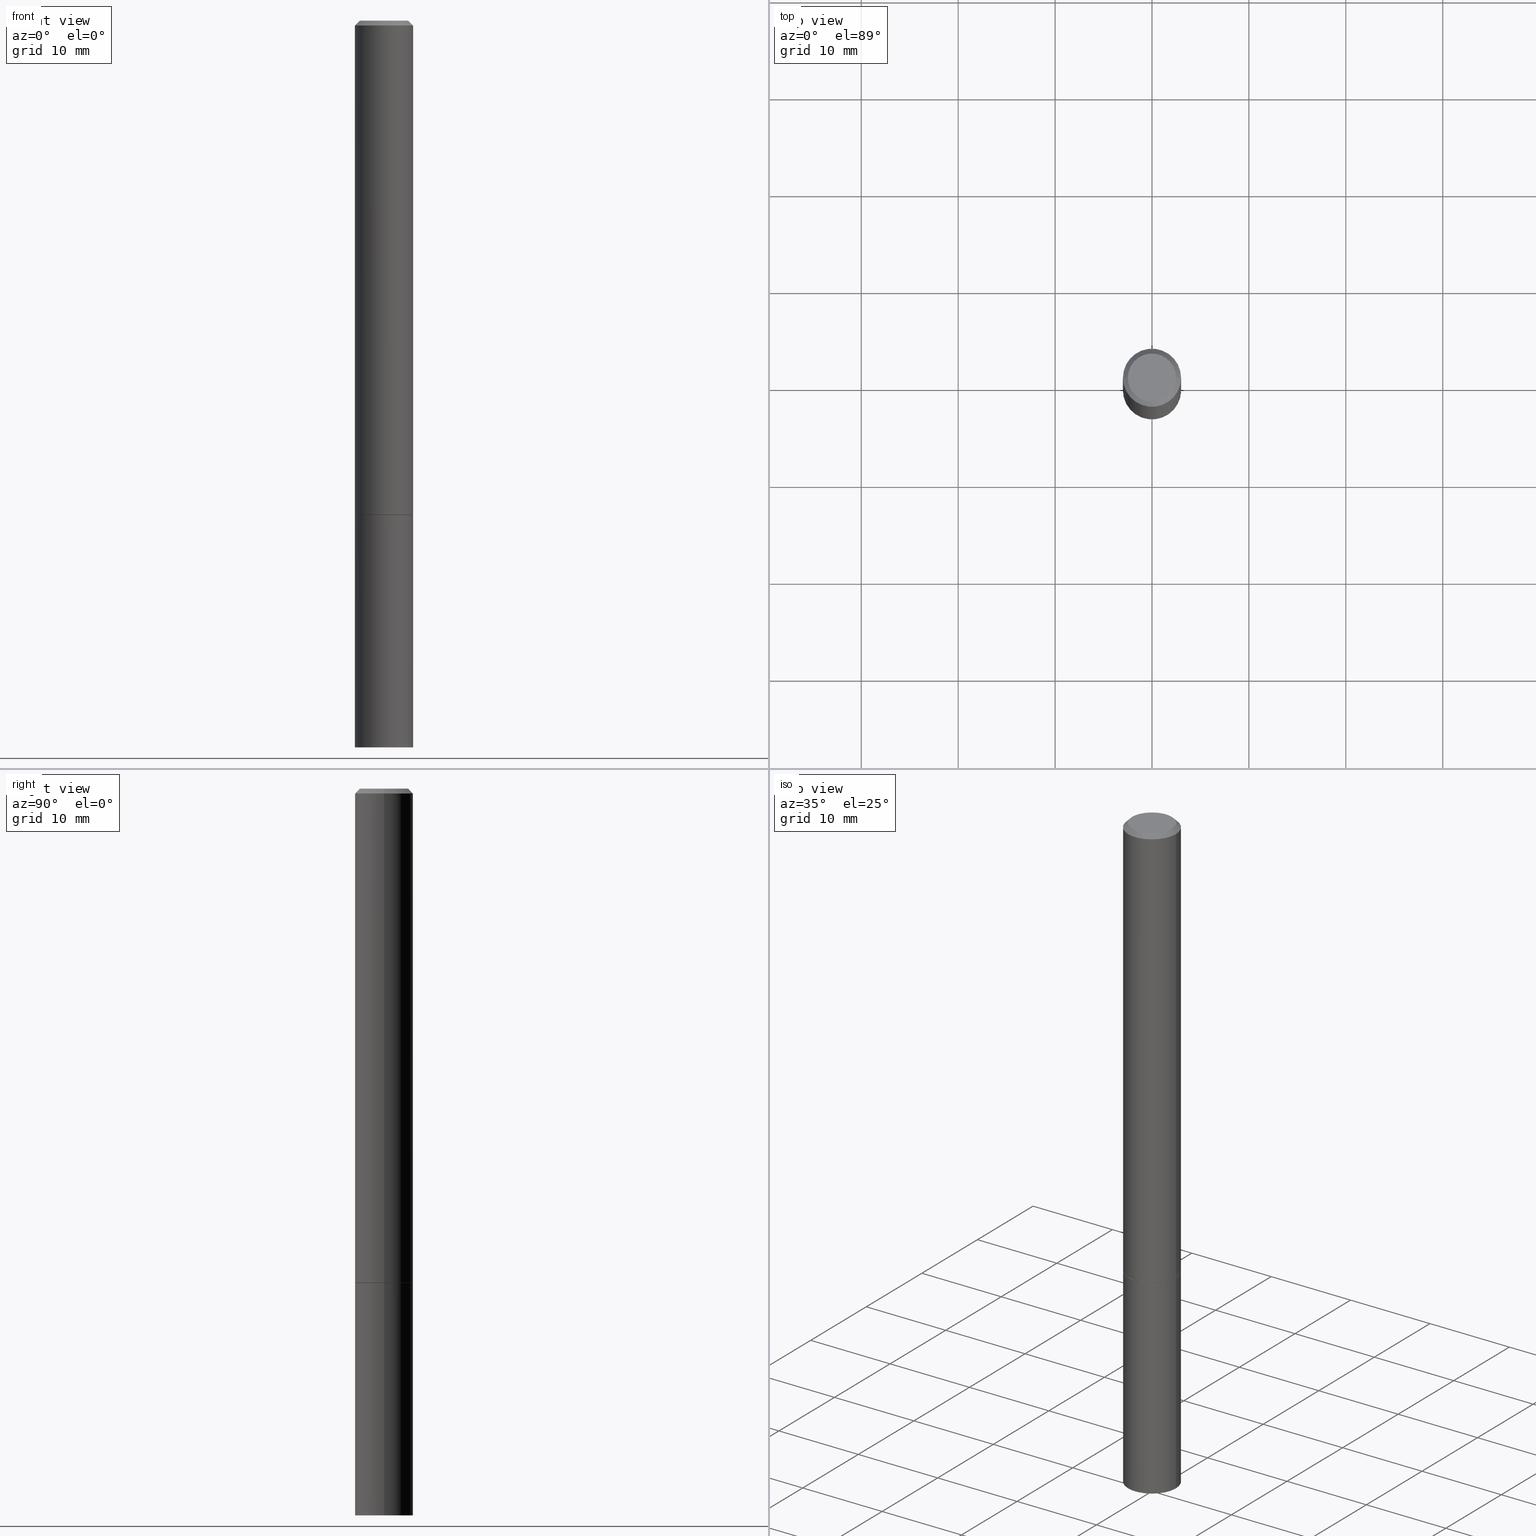
[diagram: canonical four-view strip — front | top / right | iso, engineering-drawing reading convention]
A machine part, canonical four-view strip (front | top / right | iso — engineering-drawing reading convention). The complete STEP part file that produces these views, byte-faithful:
ISO-10303-21;
HEADER;
FILE_DESCRIPTION (( 'STEP AP203' ),
    '1' );
FILE_NAME ('74334.STEP',
    '2024-02-29T08:46:15',
    ( '' ),
    ( '' ),
    'SwSTEP 2.0',
    'SolidWorks 2023',
    '' );
FILE_SCHEMA (( 'CONFIG_CONTROL_DESIGN' ));
ENDSEC;

DATA;
#1 = LINE ( 'NONE', #258, #297 ) ;
#2 = DIRECTION ( 'NONE',  ( -2.445468806185136597E-29, 3.491481338843145583E-15, 1.000000000000000000 ) ) ;
#3 = CARTESIAN_POINT ( 'NONE',  ( -0.1180999999999998995, 8.391509709326776054E-16, -5.809262341591038879E-30 ) ) ;
#4 = LOCAL_TIME ( 3, 46, 15.00000000000000000, #127 ) ;
#5 = LINE ( 'NONE', #81, #95 ) ;
#6 = ORIENTED_EDGE ( 'NONE', *, *, #328, .T. ) ;
#7 = VERTEX_POINT ( 'NONE', #182 ) ;
#8 = AXIS2_PLACEMENT_3D ( 'NONE', #165, #255, #135 ) ;
#9 = COORDINATED_UNIVERSAL_TIME_OFFSET ( 5, 0, .BEHIND. ) ;
#10 = ORIENTED_EDGE ( 'NONE', *, *, #249, .F. ) ;
#11 =( LENGTH_UNIT ( ) NAMED_UNIT ( * ) SI_UNIT ( $, .METRE. ) );
#12 = ORIENTED_EDGE ( 'NONE', *, *, #328, .F. ) ;
#13 = DIRECTION ( 'NONE',  ( 1.000000000000000000, -6.982962677686266711E-15, 0.000000000000000000 ) ) ;
#14 = EDGE_CURVE ( 'NONE', #205, #207, #17, .T. ) ;
#15 = CYLINDRICAL_SURFACE ( 'NONE', #46, 0.1180999999999999966 ) ;
#16 = DIRECTION ( 'NONE',  ( 1.000000000000000000, -6.982962677686267499E-15, 4.876195163481342132E-29 ) ) ;
#17 = LINE ( 'NONE', #131, #346 ) ;
#18 = DIRECTION ( 'NONE',  ( 2.438088387897960049E-29, -3.491481338843145188E-15, -1.000000000000000000 ) ) ;
#19 = CARTESIAN_POINT ( 'NONE',  ( 4.910256815939135309E-29, -7.010545380263150922E-15, -2.007899999999999796 ) ) ;
#20 = DATE_AND_TIME ( #365, #366 ) ;
#21 = AXIS2_PLACEMENT_3D ( 'NONE', #299, #164, #274 ) ;
#22 = CARTESIAN_POINT ( 'NONE',  ( 4.890937612370280165E-31, -6.982962677686301470E-17, -0.02000000000000003164 ) ) ;
#23 = CONICAL_SURFACE ( 'NONE', #279, 0.1180999999999997746, 0.7853981633974471688 ) ;
#24 = FACE_OUTER_BOUND ( 'NONE', #292, .T. ) ;
#25 = EDGE_CURVE ( 'NONE', #268, #207, #74, .T. ) ;
#26 = DATE_TIME_ROLE ( 'classification_date' ) ;
#27 = DIRECTION ( 'NONE',  ( -1.000000000000000000, 6.982962677686265922E-15, -4.876176775795935793E-29 ) ) ;
#28 = ORIENTED_EDGE ( 'NONE', *, *, #249, .T. ) ;
#29 = EDGE_LOOP ( 'NONE', ( #187, #214 ) ) ;
#30 =( NAMED_UNIT ( * ) SI_UNIT ( $, .STERADIAN. ) SOLID_ANGLE_UNIT ( ) );
#31 = EDGE_CURVE ( 'NONE', #153, #126, #188, .T. ) ;
#32 = CC_DESIGN_APPROVAL ( #77, ( #355 ) ) ;
#33 = ORIENTED_EDGE ( 'NONE', *, *, #141, .T. ) ;
#34 = ORIENTED_EDGE ( 'NONE', *, *, #14, .F. ) ;
#35 = CYLINDRICAL_SURFACE ( 'NONE', #265, 0.1180999999999999966 ) ;
#36 = ORIENTED_EDGE ( 'NONE', *, *, #198, .T. ) ;
#37 = CARTESIAN_POINT ( 'NONE',  ( 0.000000000000000000, 0.000000000000000000, 0.000000000000000000 ) ) ;
#38 = AXIS2_PLACEMENT_3D ( 'NONE', #234, #173, #53 ) ;
#39 = COORDINATED_UNIVERSAL_TIME_OFFSET ( 5, 0, .BEHIND. ) ;
#40 = PLANE ( 'NONE',  #304 ) ;
#41 = CARTESIAN_POINT ( 'NONE',  ( 0.1170999999999999958, -7.828250309820211592E-15, -2.007899999999999796 ) ) ;
#42 = EDGE_CURVE ( 'NONE', #150, #318, #61, .T. ) ;
#43 = AXIS2_PLACEMENT_3D ( 'NONE', #19, #134, #272 ) ;
#44 = LOCAL_TIME ( 3, 46, 15.00000000000000000, #161 ) ;
#45 = ADVANCED_FACE ( 'NONE', ( #193 ), #200, .T. ) ;
#46 = AXIS2_PLACEMENT_3D ( 'NONE', #186, #273, #296 ) ;
#47 = CARTESIAN_POINT ( 'NONE',  ( 4.890937612370280165E-31, -6.982962677686301470E-17, -0.02000000000000003164 ) ) ;
#48 = DIRECTION ( 'NONE',  ( 2.438088387897960049E-29, -3.491481338843145188E-15, -1.000000000000000000 ) ) ;
#49 = CIRCLE ( 'NONE', #143, 0.1180999999999999966 ) ;
#50 = LINE ( 'NONE', #261, #118 ) ;
#51 = PRODUCT_DEFINITION_FORMATION_WITH_SPECIFIED_SOURCE ( 'ANY', '', #121, .NOT_KNOWN. ) ;
#52 = ORIENTED_EDGE ( 'NONE', *, *, #308, .T. ) ;
#53 = DIRECTION ( 'NONE',  ( 1.000000000000000000, -6.982962677686264344E-15, 0.000000000000000000 ) ) ;
#54 = MANIFOLD_SOLID_BREP ( 'Body-Move/Copy2[1]', #128 ) ;
#55 = CC_DESIGN_PERSON_AND_ORGANIZATION_ASSIGNMENT ( #336, #191, ( #51 ) ) ;
#56 = EDGE_LOOP ( 'NONE', ( #78, #90 ) ) ;
#57 = ADVANCED_BREP_SHAPE_REPRESENTATION ( '74334', ( #54, #63, #62 ), #362 ) ;
#58 = DIRECTION ( 'NONE',  ( 1.000000000000000000, -6.982962677686266711E-15, 4.876176775795936353E-29 ) ) ;
#59 = ORIENTED_EDGE ( 'NONE', *, *, #42, .F. ) ;
#60 = PERSON_AND_ORGANIZATION_ROLE ( 'design_owner' ) ;
#61 = CIRCLE ( 'NONE', #43, 0.1180999999999999966 ) ;
#62 = AXIS2_PLACEMENT_3D ( 'NONE', #37, #358, #243 ) ;
#63 = MANIFOLD_SOLID_BREP ( 'Body-Move/Copy2[2]', #334 ) ;
#64 = ORIENTED_EDGE ( 'NONE', *, *, #83, .F. ) ;
#65 = CARTESIAN_POINT ( 'NONE',  ( 0.000000000000000000, 0.000000000000000000, 0.000000000000000000 ) ) ;
#66 = APPROVAL_STATUS ( 'not_yet_approved' ) ;
#67 = ORIENTED_EDGE ( 'NONE', *, *, #280, .F. ) ;
#68 = CIRCLE ( 'NONE', #276, 0.09809999999999979847 ) ;
#69 = LOCAL_TIME ( 3, 46, 15.00000000000000000, #301 ) ;
#70 = DIRECTION ( 'NONE',  ( -2.445468806185136597E-29, 3.491481338843145583E-15, 1.000000000000000000 ) ) ;
#71 = ADVANCED_FACE ( 'NONE', ( #224 ), #196, .F. ) ;
#72 = FACE_OUTER_BOUND ( 'NONE', #88, .T. ) ;
#73 = CARTESIAN_POINT ( 'NONE',  ( 4.910256815939135309E-29, -7.010545380263150922E-15, -2.007899999999999796 ) ) ;
#74 = LINE ( 'NONE', #104, #231 ) ;
#75 = SECURITY_CLASSIFICATION_LEVEL ( 'unclassified' ) ;
#76 = DIRECTION ( 'NONE',  ( -2.445468806185136597E-29, 3.491481338843145583E-15, 1.000000000000000000 ) ) ;
#77 = APPROVAL ( #66, 'UNSPECIFIED' ) ;
#78 = ORIENTED_EDGE ( 'NONE', *, *, #31, .F. ) ;
#79 = CALENDAR_DATE ( 2024, 29, 2 ) ;
#80 = DIRECTION ( 'NONE',  ( -2.445468806185136877E-29, 3.491481338843145188E-15, 1.000000000000000000 ) ) ;
#81 = CARTESIAN_POINT ( 'NONE',  ( -0.1170999999999999958, -6.178499836688073733E-15, -2.007899999999999796 ) ) ;
#82 = FACE_OUTER_BOUND ( 'NONE', #245, .T. ) ;
#83 = EDGE_CURVE ( 'NONE', #7, #269, #49, .T. ) ;
#84 = DIRECTION ( 'NONE',  ( 1.000000000000000000, -6.982962677686266711E-15, 4.876176775795935232E-29 ) ) ;
#85 = CIRCLE ( 'NONE', #117, 0.1181000000000000105 ) ;
#86 = ORIENTED_EDGE ( 'NONE', *, *, #198, .F. ) ;
#87 = PRODUCT_DEFINITION ( 'UNKNOWN', '', #51, #213 ) ;
#88 = EDGE_LOOP ( 'NONE', ( #350, #52, #344, #241 ) ) ;
#89 = APPLICATION_CONTEXT ( 'configuration controlled 3d designs of mechanical parts and assemblies' ) ;
#90 = ORIENTED_EDGE ( 'NONE', *, *, #308, .F. ) ;
#91 = CALENDAR_DATE ( 2024, 29, 2 ) ;
#92 = EDGE_LOOP ( 'NONE', ( #36, #288, #59, #178 ) ) ;
#93 = PERSON_AND_ORGANIZATION_ROLE ( 'creator' ) ;
#94 = AXIS2_PLACEMENT_3D ( 'NONE', #109, #340, #250 ) ;
#95 = VECTOR ( 'NONE', #309, 39.37007874015748143 ) ;
#96 = ORIENTED_EDGE ( 'NONE', *, *, #25, .F. ) ;
#97 = ADVANCED_FACE ( 'NONE', ( #225 ), #335, .T. ) ;
#98 = FACE_OUTER_BOUND ( 'NONE', #325, .T. ) ;
#99 = PERSON_AND_ORGANIZATION ( #202, #257 ) ;
#100 = DIRECTION ( 'NONE',  ( 2.438088387897960049E-29, -3.491481338843145188E-15, -1.000000000000000000 ) ) ;
#101 = EDGE_CURVE ( 'NONE', #264, #268, #68, .T. ) ;
#102 = CARTESIAN_POINT ( 'NONE',  ( 8.246878922348201475E-16, 0.1180999999999896855, -2.952800000000000313 ) ) ;
#103 = DIRECTION ( 'NONE',  ( -2.445468806185136597E-29, 3.491481338843145583E-15, 1.000000000000000000 ) ) ;
#104 = CARTESIAN_POINT ( 'NONE',  ( 0.1180999999999997746, -8.800544403136792597E-16, -0.02000000000000003164 ) ) ;
#105 = PERSON_AND_ORGANIZATION_ROLE ( 'creator' ) ;
#106 = DIRECTION ( 'NONE',  ( -2.445468806185136597E-29, 3.491481338843145583E-15, 1.000000000000000000 ) ) ;
#107 = VECTOR ( 'NONE', #172, 39.37007874015748143 ) ;
#108 = AXIS2_PLACEMENT_3D ( 'NONE', #293, #267, #13 ) ;
#109 = CARTESIAN_POINT ( 'NONE',  ( 7.220980290903470182E-29, -1.030964609733603853E-14, -2.952799999999999869 ) ) ;
#110 = CYLINDRICAL_SURFACE ( 'NONE', #329, 0.1180999999999998995 ) ;
#111 = CARTESIAN_POINT ( 'NONE',  ( -0.09809999999999979847, 7.199434520694525264E-16, -8.537024980205735990E-18 ) ) ;
#112 = DIRECTION ( 'NONE',  ( -2.445468806185136877E-29, 3.491481338843145188E-15, 1.000000000000000000 ) ) ;
#113 = FACE_OUTER_BOUND ( 'NONE', #29, .T. ) ;
#114 = ORIENTED_EDGE ( 'NONE', *, *, #351, .T. ) ;
#115 = CARTESIAN_POINT ( 'NONE',  ( 0.09809999999999979847, -7.765346469475326737E-16, -8.537024980195711910E-18 ) ) ;
#116 = CC_DESIGN_PERSON_AND_ORGANIZATION_ASSIGNMENT ( #130, #60, ( #121 ) ) ;
#117 = AXIS2_PLACEMENT_3D ( 'NONE', #331, #70, #190 ) ;
#118 = VECTOR ( 'NONE', #229, 39.37007874015748143 ) ;
#119 = ORIENTED_EDGE ( 'NONE', *, *, #83, .T. ) ;
#120 = PERSON_AND_ORGANIZATION ( #202, #257 ) ;
#121 = PRODUCT ( '74334', '74334', '', ( #210 ) ) ;
#122 = EDGE_LOOP ( 'NONE', ( #185, #119, #290, #154 ) ) ;
#123 = APPROVAL_DATE_TIME ( #204, #77 ) ;
#124 = EDGE_LOOP ( 'NONE', ( #96, #209, #352, #114 ) ) ;
#125 = DATE_AND_TIME ( #291, #4 ) ;
#126 = VERTEX_POINT ( 'NONE', #217 ) ;
#127 = COORDINATED_UNIVERSAL_TIME_OFFSET ( 5, 0, .BEHIND. ) ;
#128 = CLOSED_SHELL ( 'NONE', ( #360, #97, #216, #339 ) ) ;
#129 = CARTESIAN_POINT ( 'NONE',  ( 7.220980290903470182E-29, -1.030964609733603853E-14, -2.952799999999999869 ) ) ;
#130 = PERSON_AND_ORGANIZATION ( #202, #257 ) ;
#131 = CARTESIAN_POINT ( 'NONE',  ( 0.1180999999999998995, -8.246878922347473751E-16, 5.758764772214994835E-30 ) ) ;
#132 = CC_DESIGN_PERSON_AND_ORGANIZATION_ASSIGNMENT ( #223, #105, ( #51 ) ) ;
#133 = APPROVAL_ROLE ( '' ) ;
#134 = DIRECTION ( 'NONE',  ( -2.445468806185136597E-29, 3.491481338843145583E-15, 1.000000000000000000 ) ) ;
#135 = DIRECTION ( 'NONE',  ( 1.000000000000000000, -6.982962677686264344E-15, 0.000000000000000000 ) ) ;
#136 = ADVANCED_FACE ( 'NONE', ( #98 ), #220, .T. ) ;
#137 = CARTESIAN_POINT ( 'NONE',  ( -0.1181000000000000383, -2.699290791917902676E-15, -2.006899999999999462 ) ) ;
#138 = APPROVAL_PERSON_ORGANIZATION ( #120, #324, #353 ) ;
#139 = CARTESIAN_POINT ( 'NONE',  ( 0.1180999999999999966, -1.113433398957078679E-14, -2.952799999999999869 ) ) ;
#140 = DIRECTION ( 'NONE',  ( -2.445468806185136597E-29, 3.491481338843145583E-15, 1.000000000000000000 ) ) ;
#141 = EDGE_CURVE ( 'NONE', #235, #205, #85, .T. ) ;
#142 = DIRECTION ( 'NONE',  ( 1.000000000000000000, -6.982962677686266711E-15, 0.000000000000000000 ) ) ;
#143 = AXIS2_PLACEMENT_3D ( 'NONE', #129, #106, #363 ) ;
#144 = DATE_AND_TIME ( #79, #69 ) ;
#145 = ORIENTED_EDGE ( 'NONE', *, *, #31, .T. ) ;
#146 = CARTESIAN_POINT ( 'NONE',  ( 0.000000000000000000, 0.000000000000000000, 0.000000000000000000 ) ) ;
#147 = DIRECTION ( 'NONE',  ( 1.000000000000000000, -6.982962677686264344E-15, 0.000000000000000000 ) ) ;
#148 = APPROVAL ( #218, 'UNSPECIFIED' ) ;
#149 = PERSON_AND_ORGANIZATION ( #202, #257 ) ;
#150 = VERTEX_POINT ( 'NONE', #332 ) ;
#151 = CONICAL_SURFACE ( 'NONE', #252, 0.1170999999999999958, 0.7853981633974227439 ) ;
#152 = VECTOR ( 'NONE', #112, 39.37007874015748143 ) ;
#153 = VERTEX_POINT ( 'NONE', #41 ) ;
#154 = ORIENTED_EDGE ( 'NONE', *, *, #311, .F. ) ;
#155 = APPROVAL_DATE_TIME ( #125, #324 ) ;
#156 = ADVANCED_FACE ( 'NONE', ( #72 ), #151, .T. ) ;
#157 = ORIENTED_EDGE ( 'NONE', *, *, #177, .F. ) ;
#158 =( CONVERSION_BASED_UNIT ( 'INCH', #183 ) LENGTH_UNIT ( ) NAMED_UNIT ( #180 ) );
#159 = APPROVAL_ROLE ( '' ) ;
#160 = DIRECTION ( 'NONE',  ( -1.000000000000000000, 6.982962677686265922E-15, -4.876176775795935793E-29 ) ) ;
#161 = COORDINATED_UNIVERSAL_TIME_OFFSET ( 5, 0, .BEHIND. ) ;
#162 = PRODUCT_DEFINITION_SHAPE ( 'NONE', 'NONE',  #87 ) ;
#163 = ADVANCED_FACE ( 'NONE', ( #233 ), #23, .T. ) ;
#164 = DIRECTION ( 'NONE',  ( -2.445468806185136597E-29, 3.491481338843145583E-15, 1.000000000000000000 ) ) ;
#165 = CARTESIAN_POINT ( 'NONE',  ( 4.910256815939135309E-29, -7.010545380263150922E-15, -2.007899999999999796 ) ) ;
#166 = CONICAL_SURFACE ( 'NONE', #195, 0.1170999999999999958, 0.7853981633974227439 ) ;
#167 = AXIS2_PLACEMENT_3D ( 'NONE', #230, #341, #176 ) ;
#168 = DIRECTION ( 'NONE',  ( 1.000000000000000000, -6.982962677686264344E-15, 0.000000000000000000 ) ) ;
#169 = AXIS2_PLACEMENT_3D ( 'NONE', #327, #303, #364 ) ;
#170 = ADVANCED_FACE ( 'NONE', ( #82 ), #281, .F. ) ;
#171 = LINE ( 'NONE', #3, #152 ) ;
#172 = DIRECTION ( 'NONE',  ( -0.7071067811865466846, 2.468850131082247989E-15, -0.7071067811865483499 ) ) ;
#173 = DIRECTION ( 'NONE',  ( -2.445468806185136597E-29, 3.491481338843145583E-15, 1.000000000000000000 ) ) ;
#174 = AXIS2_PLACEMENT_3D ( 'NONE', #73, #306, #253 ) ;
#175 = CIRCLE ( 'NONE', #167, 0.1170999999999999958 ) ;
#176 = DIRECTION ( 'NONE',  ( 1.000000000000000000, -6.982962677686264344E-15, 0.000000000000000000 ) ) ;
#177 = EDGE_CURVE ( 'NONE', #268, #264, #237, .T. ) ;
#178 = ORIENTED_EDGE ( 'NONE', *, *, #254, .F. ) ;
#179 = ORIENTED_EDGE ( 'NONE', *, *, #177, .T. ) ;
#180 = DIMENSIONAL_EXPONENTS ( 1.000000000000000000, 0.000000000000000000, 0.000000000000000000, 0.000000000000000000, 0.000000000000000000, 0.000000000000000000, 0.000000000000000000 ) ;
#181 = APPROVAL_PERSON_ORGANIZATION ( #149, #77, #159 ) ;
#182 = CARTESIAN_POINT ( 'NONE',  ( -0.1180999999999999966, -7.820944767866917317E-15, -2.952799999999999869 ) ) ;
#183 = LENGTH_MEASURE_WITH_UNIT ( LENGTH_MEASURE( 0.02539999999999999897 ), #11 );
#184 = CC_DESIGN_PERSON_AND_ORGANIZATION_ASSIGNMENT ( #326, #93, ( #87 ) ) ;
#185 = ORIENTED_EDGE ( 'NONE', *, *, #300, .F. ) ;
#186 = CARTESIAN_POINT ( 'NONE',  ( 0.000000000000000000, 0.000000000000000000, 0.000000000000000000 ) ) ;
#187 = ORIENTED_EDGE ( 'NONE', *, *, #42, .T. ) ;
#188 = CIRCLE ( 'NONE', #8, 0.1170999999999999958 ) ;
#189 = DIRECTION ( 'NONE',  ( -1.000000000000000000, 6.982962677686265922E-15, -4.876176775795935793E-29 ) ) ;
#190 = DIRECTION ( 'NONE',  ( 1.000000000000000000, -6.982962677686264344E-15, 0.000000000000000000 ) ) ;
#191 = PERSON_AND_ORGANIZATION_ROLE ( 'design_supplier' ) ;
#192 = CARTESIAN_POINT ( 'NONE',  ( 4.910256815939135309E-29, -7.010545380263150922E-15, -2.007899999999999796 ) ) ;
#193 = FACE_OUTER_BOUND ( 'NONE', #316, .T. ) ;
#194 = CC_DESIGN_DATE_AND_TIME_ASSIGNMENT ( #144, #26, ( #355 ) ) ;
#195 = AXIS2_PLACEMENT_3D ( 'NONE', #259, #103, #168 ) ;
#196 = PLANE ( 'NONE',  #174 ) ;
#197 = PERSON_AND_ORGANIZATION ( #202, #257 ) ;
#198 = EDGE_CURVE ( 'NONE', #269, #7, #321, .T. ) ;
#199 = CARTESIAN_POINT ( 'NONE',  ( 4.910256815939135309E-29, -7.010545380263150922E-15, -2.007899999999999796 ) ) ;
#200 = CONICAL_SURFACE ( 'NONE', #169, 0.1180999999999997746, 0.7853981633974471688 ) ;
#201 = CC_DESIGN_APPROVAL ( #148, ( #51 ) ) ;
#202 = PERSON ( 'UNSPECIFIED', 'UNSPECIFIED', 'UNSPECIFIED', ('UNSPECIFIED'), ('UNSPECIFIED'), ('UNSPECIFIED') ) ;
#203 = DIRECTION ( 'NONE',  ( 2.445468806185136597E-29, -3.491481338843145583E-15, -1.000000000000000000 ) ) ;
#204 = DATE_AND_TIME ( #91, #305 ) ;
#205 = VERTEX_POINT ( 'NONE', #240 ) ;
#206 = DIRECTION ( 'NONE',  ( 1.000000000000000000, -6.982962677686265133E-15, 0.000000000000000000 ) ) ;
#207 = VERTEX_POINT ( 'NONE', #226 ) ;
#208 = PRODUCT_RELATED_PRODUCT_CATEGORY ( 'detail', '', ( #121 ) ) ;
#209 = ORIENTED_EDGE ( 'NONE', *, *, #101, .F. ) ;
#210 = MECHANICAL_CONTEXT ( 'NONE', #89, 'mechanical' ) ;
#211 = CIRCLE ( 'NONE', #347, 0.1180999999999999966 ) ;
#212 = CALENDAR_DATE ( 2024, 29, 2 ) ;
#213 = DESIGN_CONTEXT ( 'detailed design', #342, 'design' ) ;
#214 = ORIENTED_EDGE ( 'NONE', *, *, #311, .T. ) ;
#215 = APPROVAL_STATUS ( 'not_yet_approved' ) ;
#216 = ADVANCED_FACE ( 'NONE', ( #113 ), #40, .F. ) ;
#217 = CARTESIAN_POINT ( 'NONE',  ( -0.1170999999999999958, -6.173201382339850542E-15, -2.007899999999999796 ) ) ;
#218 = APPROVAL_STATUS ( 'not_yet_approved' ) ;
#219 = AXIS2_PLACEMENT_3D ( 'NONE', #271, #18, #27 ) ;
#220 = CYLINDRICAL_SURFACE ( 'NONE', #21, 0.1180999999999998995 ) ;
#221 = CIRCLE ( 'NONE', #108, 0.1180999999999997746 ) ;
#222 = CARTESIAN_POINT ( 'NONE',  ( 2.087702828670439639E-46, -2.980686340760894400E-32, -8.537024980200822558E-18 ) ) ;
#223 = PERSON_AND_ORGANIZATION ( #202, #257 ) ;
#224 = FACE_OUTER_BOUND ( 'NONE', #56, .T. ) ;
#225 = FACE_OUTER_BOUND ( 'NONE', #262, .T. ) ;
#226 = CARTESIAN_POINT ( 'NONE',  ( 0.1180999999999997746, -8.800544403136792597E-16, -0.02000000000000003164 ) ) ;
#227 = CIRCLE ( 'NONE', #310, 0.1180999999999997746 ) ;
#228 = ADVANCED_FACE ( 'NONE', ( #302 ), #166, .T. ) ;
#229 = DIRECTION ( 'NONE',  ( -2.445468806185136877E-29, 3.491481338843145188E-15, 1.000000000000000000 ) ) ;
#230 = CARTESIAN_POINT ( 'NONE',  ( 4.910256815939135309E-29, -7.010545380263150922E-15, -2.007899999999999796 ) ) ;
#231 = VECTOR ( 'NONE', #277, 39.37007874015748143 ) ;
#232 = APPROVAL_PERSON_ORGANIZATION ( #99, #148, #133 ) ;
#233 = FACE_OUTER_BOUND ( 'NONE', #124, .T. ) ;
#234 = CARTESIAN_POINT ( 'NONE',  ( 4.907811347132949706E-29, -7.007053898924307126E-15, -2.006899999999999462 ) ) ;
#235 = VERTEX_POINT ( 'NONE', #137 ) ;
#236 = DIRECTION ( 'NONE',  ( -2.445468806185136597E-29, 3.491481338843145583E-15, 1.000000000000000000 ) ) ;
#237 = CIRCLE ( 'NONE', #314, 0.09809999999999979847 ) ;
#238 = ORIENTED_EDGE ( 'NONE', *, *, #285, .F. ) ;
#239 = APPLICATION_PROTOCOL_DEFINITION ( 'international standard', 'config_control_design', 1994, #89 ) ;
#240 = CARTESIAN_POINT ( 'NONE',  ( 0.1181000000000000105, -7.831741791159054599E-15, -2.006899999999999462 ) ) ;
#241 = ORIENTED_EDGE ( 'NONE', *, *, #141, .F. ) ;
#242 = ORIENTED_EDGE ( 'NONE', *, *, #351, .F. ) ;
#243 = DIRECTION ( 'NONE',  ( 1.000000000000000000, 0.000000000000000000, 0.000000000000000000 ) ) ;
#244 = VECTOR ( 'NONE', #282, 39.37007874015748143 ) ;
#245 = EDGE_LOOP ( 'NONE', ( #348, #179 ) ) ;
#246 =( NAMED_UNIT ( * ) PLANE_ANGLE_UNIT ( ) SI_UNIT ( $, .RADIAN. ) );
#247 = DIRECTION ( 'NONE',  ( -2.445468806185136597E-29, 3.491481338843145583E-15, 1.000000000000000000 ) ) ;
#248 = DATE_AND_TIME ( #212, #44 ) ;
#249 = EDGE_CURVE ( 'NONE', #205, #235, #354, .T. ) ;
#250 = DIRECTION ( 'NONE',  ( 1.000000000000000000, -6.982962677686273021E-15, 0.000000000000000000 ) ) ;
#251 = APPROVAL_DATE_TIME ( #20, #148 ) ;
#252 = AXIS2_PLACEMENT_3D ( 'NONE', #192, #2, #147 ) ;
#253 = DIRECTION ( 'NONE',  ( 1.000000000000000000, -6.982962677686265922E-15, 4.876176775795935793E-29 ) ) ;
#254 = EDGE_CURVE ( 'NONE', #269, #150, #1, .T. ) ;
#255 = DIRECTION ( 'NONE',  ( -2.445468806185136597E-29, 3.491481338843145583E-15, 1.000000000000000000 ) ) ;
#256 = AXIS2_PLACEMENT_3D ( 'NONE', #102, #100, #160 ) ;
#257 = ORGANIZATION ( 'UNSPECIFIED', 'UNSPECIFIED', '' ) ;
#258 = CARTESIAN_POINT ( 'NONE',  ( 0.1180999999999999966, -8.246878922347480654E-16, 5.758764772215000440E-30 ) ) ;
#259 = CARTESIAN_POINT ( 'NONE',  ( 4.910256815939135309E-29, -7.010545380263150922E-15, -2.007899999999999796 ) ) ;
#260 = CC_DESIGN_DATE_AND_TIME_ASSIGNMENT ( #248, #359, ( #87 ) ) ;
#261 = CARTESIAN_POINT ( 'NONE',  ( -0.1180999999999999966, 8.391509709326782957E-16, -5.809262341591043784E-30 ) ) ;
#262 = EDGE_LOOP ( 'NONE', ( #86, #64 ) ) ;
#263 = SHAPE_DEFINITION_REPRESENTATION ( #162, #57 ) ;
#264 = VERTEX_POINT ( 'NONE', #111 ) ;
#265 = AXIS2_PLACEMENT_3D ( 'NONE', #65, #287, #58 ) ;
#266 = ORIENTED_EDGE ( 'NONE', *, *, #25, .T. ) ;
#267 = DIRECTION ( 'NONE',  ( -2.445468806185136597E-29, 3.491481338843145583E-15, 1.000000000000000000 ) ) ;
#268 = VERTEX_POINT ( 'NONE', #115 ) ;
#269 = VERTEX_POINT ( 'NONE', #139 ) ;
#270 = APPLICATION_PROTOCOL_DEFINITION ( 'international standard', 'config_control_design', 1994, #342 ) ;
#271 = CARTESIAN_POINT ( 'NONE',  ( 6.850286386810212718E-16, 0.09809999999999979847, -3.467828318306122952E-16 ) ) ;
#272 = DIRECTION ( 'NONE',  ( 1.000000000000000000, -6.982962677686265133E-15, 0.000000000000000000 ) ) ;
#273 = DIRECTION ( 'NONE',  ( -2.445468806185136597E-29, 3.491481338843145583E-15, 1.000000000000000000 ) ) ;
#274 = DIRECTION ( 'NONE',  ( 1.000000000000000000, -6.982962677686266711E-15, 4.876176775795935232E-29 ) ) ;
#275 = CC_DESIGN_PERSON_AND_ORGANIZATION_ASSIGNMENT ( #197, #307, ( #355 ) ) ;
#276 = AXIS2_PLACEMENT_3D ( 'NONE', #222, #247, #16 ) ;
#277 = DIRECTION ( 'NONE',  ( 0.7071067811865466846, -7.319954787623252890E-15, -0.7071067811865483499 ) ) ;
#278 = CARTESIAN_POINT ( 'NONE',  ( -0.1180999999999997746, 7.548582654578835839E-16, -0.02000000000000003164 ) ) ;
#279 = AXIS2_PLACEMENT_3D ( 'NONE', #22, #203, #343 ) ;
#280 = EDGE_CURVE ( 'NONE', #153, #205, #313, .T. ) ;
#281 = PLANE ( 'NONE',  #219 ) ;
#282 = DIRECTION ( 'NONE',  ( 0.7071067811865294761, -2.468850131082068128E-15, 0.7071067811865655584 ) ) ;
#283 = ORIENTED_EDGE ( 'NONE', *, *, #14, .T. ) ;
#284 = CARTESIAN_POINT ( 'NONE',  ( -0.1180999999999999966, -7.820944767866917317E-15, -2.007899999999999796 ) ) ;
#285 = EDGE_CURVE ( 'NONE', #264, #357, #338, .T. ) ;
#286 = ORIENTED_EDGE ( 'NONE', *, *, #337, .F. ) ;
#287 = DIRECTION ( 'NONE',  ( -2.445468806185136597E-29, 3.491481338843145583E-15, 1.000000000000000000 ) ) ;
#288 = ORIENTED_EDGE ( 'NONE', *, *, #300, .T. ) ;
#289 = CC_DESIGN_APPROVAL ( #324, ( #87 ) ) ;
#290 = ORIENTED_EDGE ( 'NONE', *, *, #254, .T. ) ;
#291 = CALENDAR_DATE ( 2024, 29, 2 ) ;
#292 = EDGE_LOOP ( 'NONE', ( #286, #33, #283, #242 ) ) ;
#293 = CARTESIAN_POINT ( 'NONE',  ( 4.890937612370280165E-31, -6.982962677686301470E-17, -0.02000000000000003164 ) ) ;
#294 = ADVANCED_FACE ( 'NONE', ( #24 ), #110, .T. ) ;
#295 = EDGE_LOOP ( 'NONE', ( #145, #322, #10, #67 ) ) ;
#296 = DIRECTION ( 'NONE',  ( 1.000000000000000000, -6.982962677686266711E-15, 4.876176775795936353E-29 ) ) ;
#297 = VECTOR ( 'NONE', #80, 39.37007874015748143 ) ;
#298 = CC_DESIGN_SECURITY_CLASSIFICATION ( #355, ( #51 ) ) ;
#299 = CARTESIAN_POINT ( 'NONE',  ( 0.000000000000000000, 0.000000000000000000, 0.000000000000000000 ) ) ;
#300 = EDGE_CURVE ( 'NONE', #7, #318, #50, .T. ) ;
#301 = COORDINATED_UNIVERSAL_TIME_OFFSET ( 5, 0, .BEHIND. ) ;
#302 = FACE_OUTER_BOUND ( 'NONE', #295, .T. ) ;
#303 = DIRECTION ( 'NONE',  ( 2.445468806185136597E-29, -3.491481338843145583E-15, -1.000000000000000000 ) ) ;
#304 = AXIS2_PLACEMENT_3D ( 'NONE', #333, #48, #189 ) ;
#305 = LOCAL_TIME ( 3, 46, 15.00000000000000000, #9 ) ;
#306 = DIRECTION ( 'NONE',  ( -2.438088387897960049E-29, 3.491481338843145188E-15, 1.000000000000000000 ) ) ;
#307 = PERSON_AND_ORGANIZATION_ROLE ( 'classification_officer' ) ;
#308 = EDGE_CURVE ( 'NONE', #126, #153, #175, .T. ) ;
#309 = DIRECTION ( 'NONE',  ( -0.7071067811865294761, 7.493145998870289474E-15, 0.7071067811865655584 ) ) ;
#310 = AXIS2_PLACEMENT_3D ( 'NONE', #47, #312, #142 ) ;
#311 = EDGE_CURVE ( 'NONE', #318, #150, #211, .T. ) ;
#312 = DIRECTION ( 'NONE',  ( -2.445468806185136597E-29, 3.491481338843145583E-15, 1.000000000000000000 ) ) ;
#313 = LINE ( 'NONE', #345, #244 ) ;
#314 = AXIS2_PLACEMENT_3D ( 'NONE', #319, #76, #330 ) ;
#315 = EDGE_CURVE ( 'NONE', #126, #235, #5, .T. ) ;
#316 = EDGE_LOOP ( 'NONE', ( #157, #266, #6, #238 ) ) ;
#317 = FACE_OUTER_BOUND ( 'NONE', #122, .T. ) ;
#318 = VERTEX_POINT ( 'NONE', #284 ) ;
#319 = CARTESIAN_POINT ( 'NONE',  ( 2.087702828670439639E-46, -2.980686340760894400E-32, -8.537024980200822558E-18 ) ) ;
#320 = ORIENTED_EDGE ( 'NONE', *, *, #337, .T. ) ;
#321 = CIRCLE ( 'NONE', #94, 0.1180999999999999966 ) ;
#322 = ORIENTED_EDGE ( 'NONE', *, *, #315, .T. ) ;
#323 = CARTESIAN_POINT ( 'NONE',  ( -0.1180999999999997746, 7.548582654578835839E-16, -0.02000000000000003164 ) ) ;
#324 = APPROVAL ( #215, 'UNSPECIFIED' ) ;
#325 = EDGE_LOOP ( 'NONE', ( #28, #320, #12, #34 ) ) ;
#326 = PERSON_AND_ORGANIZATION ( #202, #257 ) ;
#327 = CARTESIAN_POINT ( 'NONE',  ( 4.890937612370280165E-31, -6.982962677686301470E-17, -0.02000000000000003164 ) ) ;
#328 = EDGE_CURVE ( 'NONE', #207, #357, #227, .T. ) ;
#329 = AXIS2_PLACEMENT_3D ( 'NONE', #146, #140, #84 ) ;
#330 = DIRECTION ( 'NONE',  ( 1.000000000000000000, -6.982962677686267499E-15, 4.876195163481342132E-29 ) ) ;
#331 = CARTESIAN_POINT ( 'NONE',  ( 4.907811347132949706E-29, -7.007053898924307126E-15, -2.006899999999999462 ) ) ;
#332 = CARTESIAN_POINT ( 'NONE',  ( 0.1180999999999999966, -7.835233272497899184E-15, -2.007899999999999796 ) ) ;
#333 = CARTESIAN_POINT ( 'NONE',  ( 8.246878922347970734E-16, 0.1180999999999929745, -2.007900000000000240 ) ) ;
#334 = CLOSED_SHELL ( 'NONE', ( #228, #136, #45, #163, #294, #156, #71, #170 ) ) ;
#335 = PLANE ( 'NONE',  #256 ) ;
#336 = PERSON_AND_ORGANIZATION ( #202, #257 ) ;
#337 = EDGE_CURVE ( 'NONE', #235, #357, #171, .T. ) ;
#338 = LINE ( 'NONE', #278, #107 ) ;
#339 = ADVANCED_FACE ( 'NONE', ( #317 ), #15, .T. ) ;
#340 = DIRECTION ( 'NONE',  ( -2.445468806185136597E-29, 3.491481338843145583E-15, 1.000000000000000000 ) ) ;
#341 = DIRECTION ( 'NONE',  ( -2.445468806185136597E-29, 3.491481338843145583E-15, 1.000000000000000000 ) ) ;
#342 = APPLICATION_CONTEXT ( 'configuration controlled 3d designs of mechanical parts and assemblies' ) ;
#343 = DIRECTION ( 'NONE',  ( -1.000000000000000000, 6.982962677686266711E-15, 0.000000000000000000 ) ) ;
#344 = ORIENTED_EDGE ( 'NONE', *, *, #280, .T. ) ;
#345 = CARTESIAN_POINT ( 'NONE',  ( 0.1170999999999999958, -7.828250309820211592E-15, -2.007899999999999796 ) ) ;
#346 = VECTOR ( 'NONE', #361, 39.37007874015748143 ) ;
#347 = AXIS2_PLACEMENT_3D ( 'NONE', #199, #236, #206 ) ;
#348 = ORIENTED_EDGE ( 'NONE', *, *, #101, .T. ) ;
#349 = FACE_OUTER_BOUND ( 'NONE', #92, .T. ) ;
#350 = ORIENTED_EDGE ( 'NONE', *, *, #315, .F. ) ;
#351 = EDGE_CURVE ( 'NONE', #357, #207, #221, .T. ) ;
#352 = ORIENTED_EDGE ( 'NONE', *, *, #285, .T. ) ;
#353 = APPROVAL_ROLE ( '' ) ;
#354 = CIRCLE ( 'NONE', #38, 0.1181000000000000105 ) ;
#355 = SECURITY_CLASSIFICATION ( '', '', #75 ) ;
#356 = UNCERTAINTY_MEASURE_WITH_UNIT (LENGTH_MEASURE( 1.000000000000000082E-05 ), #158, 'distance_accuracy_value', 'NONE');
#357 = VERTEX_POINT ( 'NONE', #323 ) ;
#358 = DIRECTION ( 'NONE',  ( 0.000000000000000000, 0.000000000000000000, 1.000000000000000000 ) ) ;
#359 = DATE_TIME_ROLE ( 'creation_date' ) ;
#360 = ADVANCED_FACE ( 'NONE', ( #349 ), #35, .T. ) ;
#361 = DIRECTION ( 'NONE',  ( -2.445468806185136877E-29, 3.491481338843145188E-15, 1.000000000000000000 ) ) ;
#362 =( GEOMETRIC_REPRESENTATION_CONTEXT ( 3 ) GLOBAL_UNCERTAINTY_ASSIGNED_CONTEXT ( ( #356 ) ) GLOBAL_UNIT_ASSIGNED_CONTEXT ( ( #158, #246, #30 ) ) REPRESENTATION_CONTEXT ( 'NONE', 'WORKASPACE' ) );
#363 = DIRECTION ( 'NONE',  ( 1.000000000000000000, -6.982962677686273021E-15, 0.000000000000000000 ) ) ;
#364 = DIRECTION ( 'NONE',  ( -1.000000000000000000, 6.982962677686266711E-15, 0.000000000000000000 ) ) ;
#365 = CALENDAR_DATE ( 2024, 29, 2 ) ;
#366 = LOCAL_TIME ( 3, 46, 15.00000000000000000, #39 ) ;
ENDSEC;
END-ISO-10303-21;
